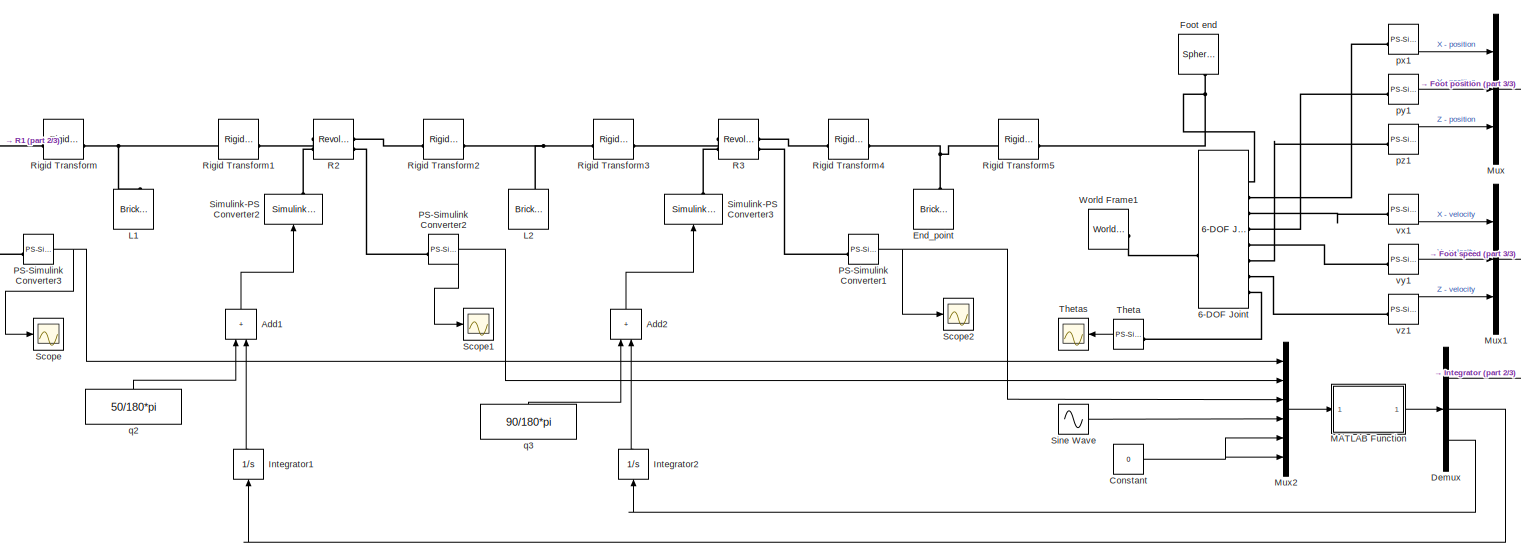
[diagram: root canvas - part 1/3, most of the canvas]
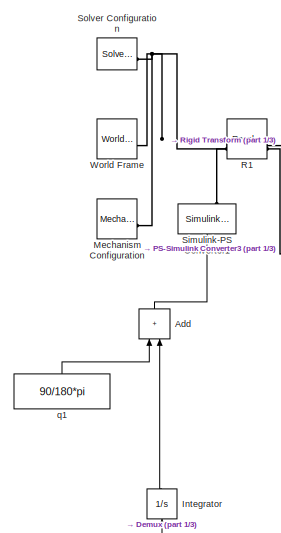
[diagram: root canvas - part 2/3, left side, full height]
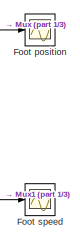
[diagram: root canvas - part 3/3, top right region]
MODEL slx_65cb6187ac40
KIND model
CONFIG AbsTol = auto
CONFIG EnableMultiTasking = on
CONFIG FixedStep = auto
CONFIG MaxStep = auto
CONFIG MinStep = auto
CONFIG RelTol = 1e-3
CONFIG SampleTimeConstraint = Unconstrained
CONFIG SolverName = ode45
CONFIG StartTime = 0.0
CONFIG StopTime = 10.0
BLOCK [Reference] 6-DOF Joint  REF=sm_lib/Joints/6-DOF Joint
  SourceBlock = sm_lib/Joints/6-DOF Joint
  SourceType = 6-DOF Joint
BLOCK [Sum] Add
  IconShape = rectangular
  NameLocation = right
BLOCK [Sum] Add1
  IconShape = rectangular
  NameLocation = right
BLOCK [Sum] Add2
  IconShape = rectangular
  NameLocation = right
BLOCK [Constant] Constant
  Value = 0
BLOCK [Demux] Demux
  Outputs = 3
BLOCK [Reference] End_point  REF=sm_lib/Body Elements/Brick Solid
  NameLocation = right
  SourceBlock = sm_lib/Body Elements/Brick Solid
  SourceType = Brick Solid
BLOCK [Reference] Foot end  REF=sm_lib/Body Elements/Spherical Solid
  NameLocation = right
  SourceBlock = sm_lib/Body Elements/Spherical Solid
  SourceType = Spherical Solid
BLOCK [Scope] Foot position
  Floating = off
  NumInputPorts = 1
  ScopeSpecificationString = Simulink.scopes.TimeScopeBlockCfg('CurrentConfiguration', extmgr.ConfigurationSet(extmgr.Configuration('Core','General UI',true),extmgr.Configuration('Core','Source UI',true),extmgr.Configuration('Sources','WiredSimulink',true,'DataLoggingVariableName','ScopeData1'),extmgr.Configuration('Visuals','Time Domain',true,'SerializedDisplays',{struct('MinYLimReal','-168.13978','MaxYLimReal','104.42593','...<+1623ch>
BLOCK [Scope] Foot speed
  Floating = off
  NumInputPorts = 1
  ScopeSpecificationString = Simulink.scopes.TimeScopeBlockCfg('CurrentConfiguration', extmgr.ConfigurationSet(extmgr.Configuration('Core','General UI',true),extmgr.Configuration('Core','Source UI',true),extmgr.Configuration('Sources','WiredSimulink',true,'DataLoggingVariableName','ScopeData2'),extmgr.Configuration('Visuals','Time Domain',true,'SerializedDisplays',{struct('MinYLimReal','-149.84466','MaxYLimReal','150.22726','...<+1447ch>
BLOCK [Integrator] Integrator
  NameLocation = right
BLOCK [Integrator] Integrator1
  NameLocation = right
BLOCK [Integrator] Integrator2
  NameLocation = right
BLOCK [Reference] L1  REF=sm_lib/Body Elements/Brick Solid
  NameLocation = right
  SourceBlock = sm_lib/Body Elements/Brick Solid
  SourceType = Brick Solid
BLOCK [Reference] L2  REF=sm_lib/Body Elements/Brick Solid
  NameLocation = right
  SourceBlock = sm_lib/Body Elements/Brick Solid
  SourceType = Brick Solid
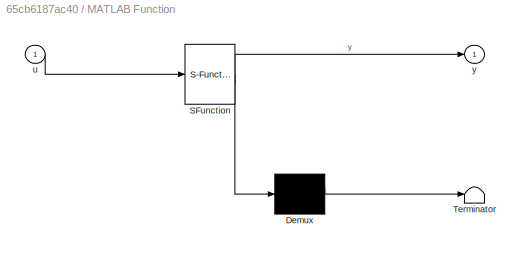
BLOCK [SubSystem] MATLAB Function
  ErrorFcn = Stateflow.Translate.translate
  PermitHierarchicalResolution = ExplicitOnly
  SFBlockType = MATLAB Function
  TreatAsAtomicUnit = on
BLOCK [Demux] MATLAB Function/ Demux 
  Outputs = 1
BLOCK [S-Function] MATLAB Function/ SFunction 
  EnableBusSupport = on
  FunctionName = sf_sfun
  PortCounts = [1 2]
  SFcnIsStateOwnerBlock = off
  SFunctionDeploymentMode = off
  Tag = Stateflow S-Function 2
BLOCK [Terminator] MATLAB Function/ Terminator 
BLOCK [Inport] MATLAB Function/u
BLOCK [Outport] MATLAB Function/y
BLOCK [Reference] Mechanism Configuration  REF=sm_lib/Utilities/Mechanism
Configuration
  SourceBlock = sm_lib/Utilities/Mechanism\nConfiguration
  SourceType = Mechanism\nConfiguration
BLOCK [Mux] Mux
  DisplayOption = bar
  Inputs = 3
BLOCK [Mux] Mux1
  DisplayOption = bar
  Inputs = 3
BLOCK [Mux] Mux2
  DisplayOption = bar
  Inputs = 6
BLOCK [Reference] PS-Simulink Converter1  REF=nesl_utility/PS-Simulink
Converter
  SourceBlock = nesl_utility/PS-Simulink\nConverter
  SourceType = PS-Simulink\nConverter
BLOCK [Reference] PS-Simulink Converter2  REF=nesl_utility/PS-Simulink
Converter
  SourceBlock = nesl_utility/PS-Simulink\nConverter
  SourceType = PS-Simulink\nConverter
BLOCK [Reference] PS-Simulink Converter3  REF=nesl_utility/PS-Simulink
Converter
  SourceBlock = nesl_utility/PS-Simulink\nConverter
  SourceType = PS-Simulink\nConverter
BLOCK [Reference] R1  REF=sm_lib/Joints/Revolute Joint
  SourceBlock = sm_lib/Joints/Revolute Joint
  SourceType = Revolute Joint
BLOCK [Reference] R2  REF=sm_lib/Joints/Revolute Joint
  SourceBlock = sm_lib/Joints/Revolute Joint
  SourceType = Revolute Joint
BLOCK [Reference] R3  REF=sm_lib/Joints/Revolute Joint
  SourceBlock = sm_lib/Joints/Revolute Joint
  SourceType = Revolute Joint
BLOCK [Reference] Rigid Transform  REF=sm_lib/Frames and
Transforms/Rigid
Transform
  SourceBlock = sm_lib/Frames and\nTransforms/Rigid\nTransform
  SourceType = Rigid\nTransform
BLOCK [Reference] Rigid Transform1  REF=sm_lib/Frames and
Transforms/Rigid
Transform
  SourceBlock = sm_lib/Frames and\nTransforms/Rigid\nTransform
  SourceType = Rigid\nTransform
BLOCK [Reference] Rigid Transform2  REF=sm_lib/Frames and
Transforms/Rigid
Transform
  SourceBlock = sm_lib/Frames and\nTransforms/Rigid\nTransform
  SourceType = Rigid\nTransform
BLOCK [Reference] Rigid Transform3  REF=sm_lib/Frames and
Transforms/Rigid
Transform
  SourceBlock = sm_lib/Frames and\nTransforms/Rigid\nTransform
  SourceType = Rigid\nTransform
BLOCK [Reference] Rigid Transform4  REF=sm_lib/Frames and
Transforms/Rigid
Transform
  SourceBlock = sm_lib/Frames and\nTransforms/Rigid\nTransform
  SourceType = Rigid\nTransform
BLOCK [Reference] Rigid Transform5  REF=sm_lib/Frames and
Transforms/Rigid
Transform
  SourceBlock = sm_lib/Frames and\nTransforms/Rigid\nTransform
  SourceType = Rigid\nTransform
BLOCK [Scope] Scope
  Floating = off
  NumInputPorts = 1
  ScopeSpecificationString = Simulink.scopes.TimeScopeBlockCfg('CurrentConfiguration', extmgr.ConfigurationSet(extmgr.Configuration('Core','General UI',true),extmgr.Configuration('Core','Source UI',true),extmgr.Configuration('Sources','WiredSimulink',true,'DataLoggingVariableName','ScopeData1'),extmgr.Configuration('Visuals','Time Domain',true,'SerializedDisplays',{struct('MinYLimReal','0.28447','MaxYLimReal','1.71372','YLabe...<+1379ch>
BLOCK [Scope] Scope1
  Floating = off
  NumInputPorts = 1
  ScopeSpecificationString = Simulink.scopes.TimeScopeBlockCfg('CurrentConfiguration', extmgr.ConfigurationSet(extmgr.Configuration('Core','General UI',true),extmgr.Configuration('Core','Source UI',true),extmgr.Configuration('Sources','WiredSimulink',true,'DataLoggingVariableName','ScopeData2'),extmgr.Configuration('Visuals','Time Domain',true,'SerializedDisplays',{struct('MinYLimReal','0.52519','MaxYLimReal','0.93178','YLabe...<+1379ch>
BLOCK [Scope] Scope2
  Floating = off
  NumInputPorts = 1
  ScopeSpecificationString = Simulink.scopes.TimeScopeBlockCfg('CurrentConfiguration', extmgr.ConfigurationSet(extmgr.Configuration('Core','General UI',true),extmgr.Configuration('Core','Source UI',true),extmgr.Configuration('Sources','WiredSimulink',true,'DataLoggingVariableName','ScopeData3'),extmgr.Configuration('Visuals','Time Domain',true,'SerializedDisplays',{struct('MinYLimReal','1.50884','MaxYLimReal','1.59372','YLabe...<+1379ch>
BLOCK [Reference] Simulink-PS Converter1  REF=nesl_utility/Simulink-PS
Converter
  NameLocation = right
  SourceBlock = nesl_utility/Simulink-PS\nConverter
  SourceType = Simulink-PS\nConverter
BLOCK [Reference] Simulink-PS Converter2  REF=nesl_utility/Simulink-PS
Converter
  NameLocation = right
  SourceBlock = nesl_utility/Simulink-PS\nConverter
  SourceType = Simulink-PS\nConverter
BLOCK [Reference] Simulink-PS Converter3  REF=nesl_utility/Simulink-PS
Converter
  NameLocation = right
  SourceBlock = nesl_utility/Simulink-PS\nConverter
  SourceType = Simulink-PS\nConverter
BLOCK [Sin] Sine Wave
  Amplitude = 120
  Frequency = pi
  SampleTime = 0
BLOCK [Reference] Solver Configuration  REF=nesl_utility/Solver
Configuration
  SourceBlock = nesl_utility/Solver\nConfiguration
  SourceType = Solver\nConfiguration
BLOCK [Reference] Theta  REF=nesl_utility/PS-Simulink
Converter
  NameLocation = top
  SourceBlock = nesl_utility/PS-Simulink\nConverter
  SourceType = PS-Simulink\nConverter
BLOCK [Scope] Thetas
  Floating = off
  NameLocation = top
  NumInputPorts = 1
  ScopeSpecificationString = Simulink.scopes.TimeScopeBlockCfg('CurrentConfiguration', extmgr.ConfigurationSet(extmgr.Configuration('Core','General UI',true),extmgr.Configuration('Core','Source UI',true),extmgr.Configuration('Sources','WiredSimulink',true,'DataLoggingLimitDataPoints',true,'DataLoggingSaveFormat','Array','DataLoggingDecimation','1','DataLoggingDecimateData',true,'DataLoggingVariableName','ScopeData3'),extmgr.C...<+1700ch>
BLOCK [Reference] World Frame  REF=sm_lib/Frames and
Transforms/World Frame
  SourceBlock = sm_lib/Frames and\nTransforms/World Frame
  SourceType = World Frame
BLOCK [Reference] World Frame1  REF=sm_lib/Frames and
Transforms/World Frame
  SourceBlock = sm_lib/Frames and\nTransforms/World Frame
  SourceType = World Frame
BLOCK [Reference] px1  REF=nesl_utility/PS-Simulink
Converter
  SourceBlock = nesl_utility/PS-Simulink\nConverter
  SourceType = PS-Simulink\nConverter
BLOCK [Reference] py1  REF=nesl_utility/PS-Simulink
Converter
  SourceBlock = nesl_utility/PS-Simulink\nConverter
  SourceType = PS-Simulink\nConverter
BLOCK [Reference] pz1  REF=nesl_utility/PS-Simulink
Converter
  SourceBlock = nesl_utility/PS-Simulink\nConverter
  SourceType = PS-Simulink\nConverter
BLOCK [Constant] q1
  NameLocation = right
  Value = 90/180*pi
BLOCK [Constant] q2
  NameLocation = right
  Value = 50/180*pi
BLOCK [Constant] q3
  NameLocation = right
  Value = 90/180*pi
BLOCK [Reference] vx1  REF=nesl_utility/PS-Simulink
Converter
  SourceBlock = nesl_utility/PS-Simulink\nConverter
  SourceType = PS-Simulink\nConverter
BLOCK [Reference] vy1  REF=nesl_utility/PS-Simulink
Converter
  SourceBlock = nesl_utility/PS-Simulink\nConverter
  SourceType = PS-Simulink\nConverter
BLOCK [Reference] vz1  REF=nesl_utility/PS-Simulink
Converter
  SourceBlock = nesl_utility/PS-Simulink\nConverter
  SourceType = PS-Simulink\nConverter
LINE Add1:1 -> Simulink-PS Converter2:1
LINE Add2:1 -> Simulink-PS Converter3:1
LINE Add:1 -> Simulink-PS Converter1:1
NET Constant:1 -> Mux2:5, Mux2:6
LINE Demux:1 -> Integrator:1
LINE Demux:2 -> Integrator1:1
LINE Demux:3 -> Integrator2:1
LINE Integrator1:1 -> Add1:2
LINE Integrator2:1 -> Add2:2
LINE Integrator:1 -> Add:2
LINE MATLAB Function:1 -> Demux:1
LINE Mux1:1 -> Foot speed:1
LINE Mux2:1 -> MATLAB Function:1
LINE Mux:1 -> Foot position:1
NET PS-Simulink Converter1:1 -> Mux2:3, Scope2:1
NET PS-Simulink Converter2:1 -> Mux2:2, Scope1:1
NET PS-Simulink Converter3:1 -> Mux2:1, Scope:1
LINE Sine Wave:1 -> Mux2:4
LINE Theta:1 -> Thetas:1
LINE px1:1 -> Mux:1
LINE py1:1 -> Mux:2
LINE pz1:1 -> Mux:3
LINE q1:1 -> Add:1
LINE q2:1 -> Add1:1
LINE q3:1 -> Add2:1
LINE vx1:1 -> Mux1:1
LINE vy1:1 -> Mux1:2
LINE vz1:1 -> Mux1:3
PLINE 6-DOF Joint:LConn1 -- World Frame1:RConn1
PNET net1: 6-DOF Joint:RConn1 -- Foot end:RConn1 -- Rigid Transform5:RConn1
PLINE 6-DOF Joint:RConn2 -- px1:LConn1
PLINE 6-DOF Joint:RConn3 -- vx1:LConn1
PLINE 6-DOF Joint:RConn4 -- py1:LConn1
PLINE 6-DOF Joint:RConn5 -- vy1:LConn1
PLINE 6-DOF Joint:RConn6 -- pz1:LConn1
PLINE 6-DOF Joint:RConn7 -- vz1:LConn1
PLINE 6-DOF Joint:RConn8 -- Theta:LConn1
PNET net2: End_point:RConn1 -- Rigid Transform4:RConn1 -- Rigid Transform5:LConn1
PNET net3: L1:RConn1 -- Rigid Transform1:LConn1 -- Rigid Transform:RConn1
PNET net4: L2:RConn1 -- Rigid Transform2:RConn1 -- Rigid Transform3:LConn1
PNET net5: Mechanism Configuration:RConn1 -- R1:LConn1 -- Solver Configuration:RConn1 -- World Frame:RConn1
PLINE PS-Simulink Converter1:LConn1 -- R3:RConn2
PLINE PS-Simulink Converter2:LConn1 -- R2:RConn2
PLINE PS-Simulink Converter3:LConn1 -- R1:RConn2
PLINE R1:LConn2 -- Simulink-PS Converter1:RConn1
PLINE R1:RConn1 -- Rigid Transform:LConn1
PLINE R2:LConn1 -- Rigid Transform1:RConn1
PLINE R2:LConn2 -- Simulink-PS Converter2:RConn1
PLINE R2:RConn1 -- Rigid Transform2:LConn1
PLINE R3:LConn1 -- Rigid Transform3:RConn1
PLINE R3:LConn2 -- Simulink-PS Converter3:RConn1
PLINE R3:RConn1 -- Rigid Transform4:LConn1
note: NET lines group one-source signal fan-out (src -> all destinations, sorted); 1:1 wires keep LINE; PNET lines group multi-terminal physical nets as a canonical sorted terminal list (undirected conserving connections); 2-terminal nets keep the pairwise PLINE form
CHART MATLAB Function states=1 transitions=1
  STATE_LABEL 'eML_blk_kernel()'
  STATE_LABEL 'SCRIPT:\nfunction y = jacob_inv2(u)\nL1=50;\nL2=100;\nL3=100;\n\n%u(i) are the inputs\n\nq1 = u(1); s1 = sin(q1); c1 = cos(q1);\nq2 = u(2); s2 = sin(q2); c2 = cos(q2);\nq3 = u(3); s3 = sin(q3); c3 = cos(q3);\nc23 = cos(q2+q3);\ns23 = sin(q2+q3);\n\ndx = u(4);\ndy = u(5);\ndz = u(6);\n\njacob3 = [-L1*s1-L2*s1*c2-L3*s1*c23,    -L2*s2*c1-L3*c1*s23,    -L3*c1*s23;\n          L1*c1+L2*c1*c2+L3*c1*c23,     -L2*s1*s2-L3*s1...<+173ch>'
CHART  states=0 transitions=0
